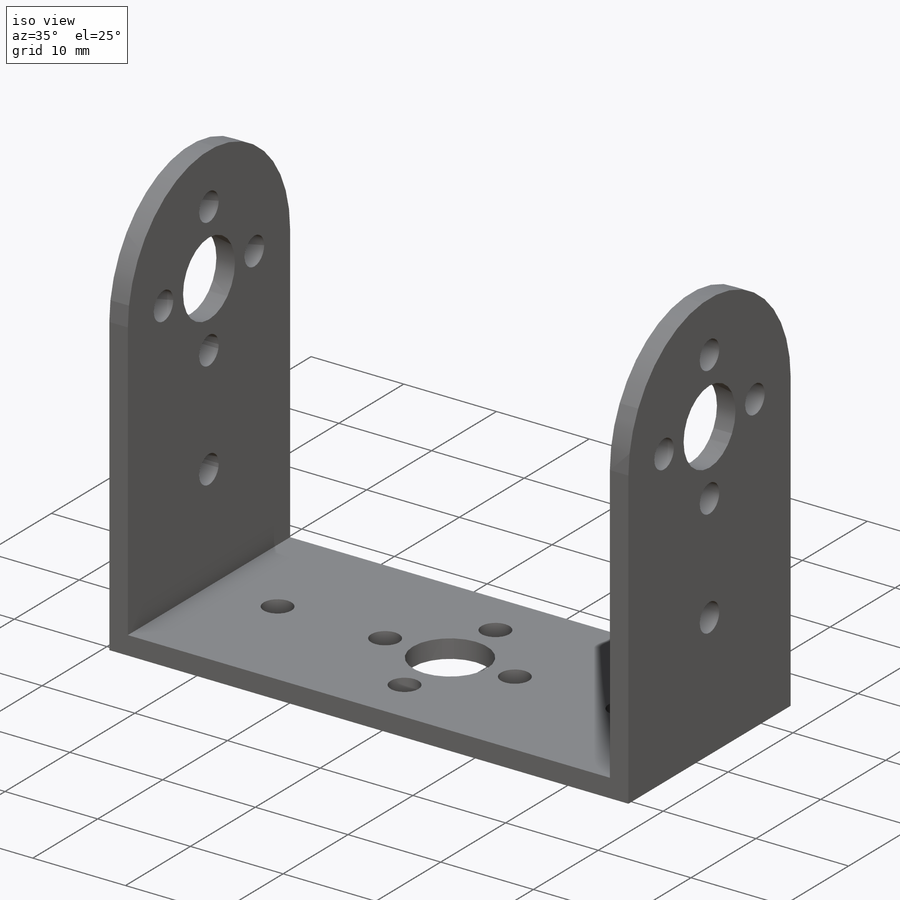
[diagram: iso view]
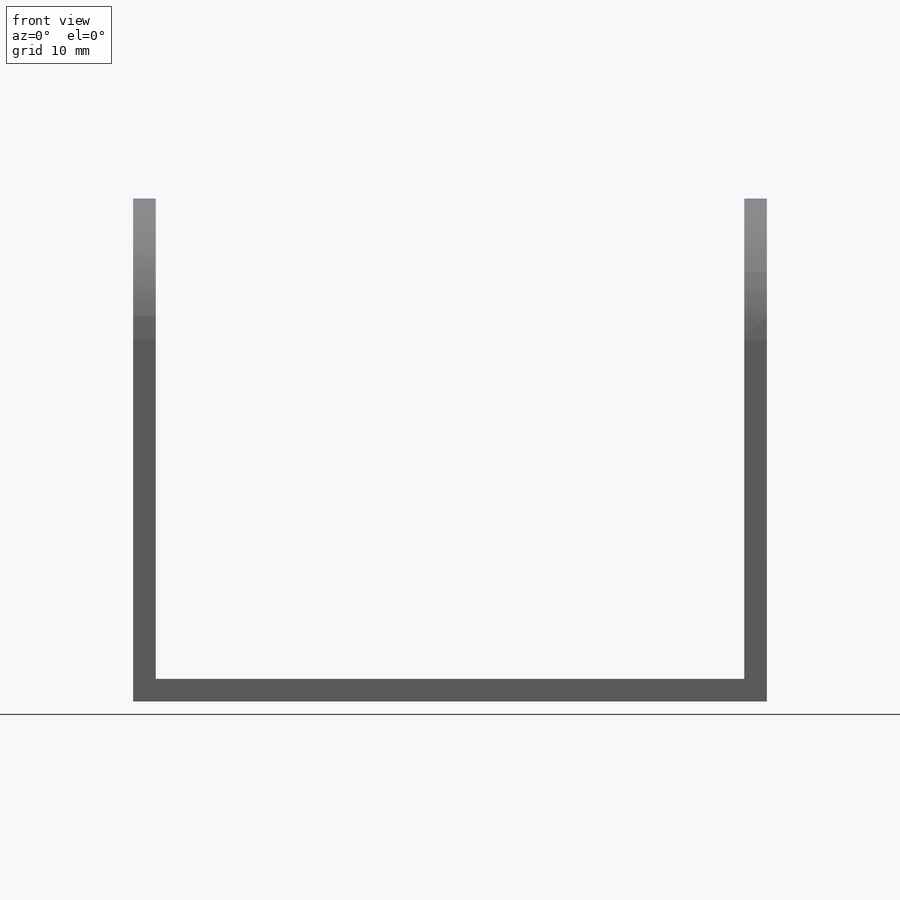
[diagram: front view]
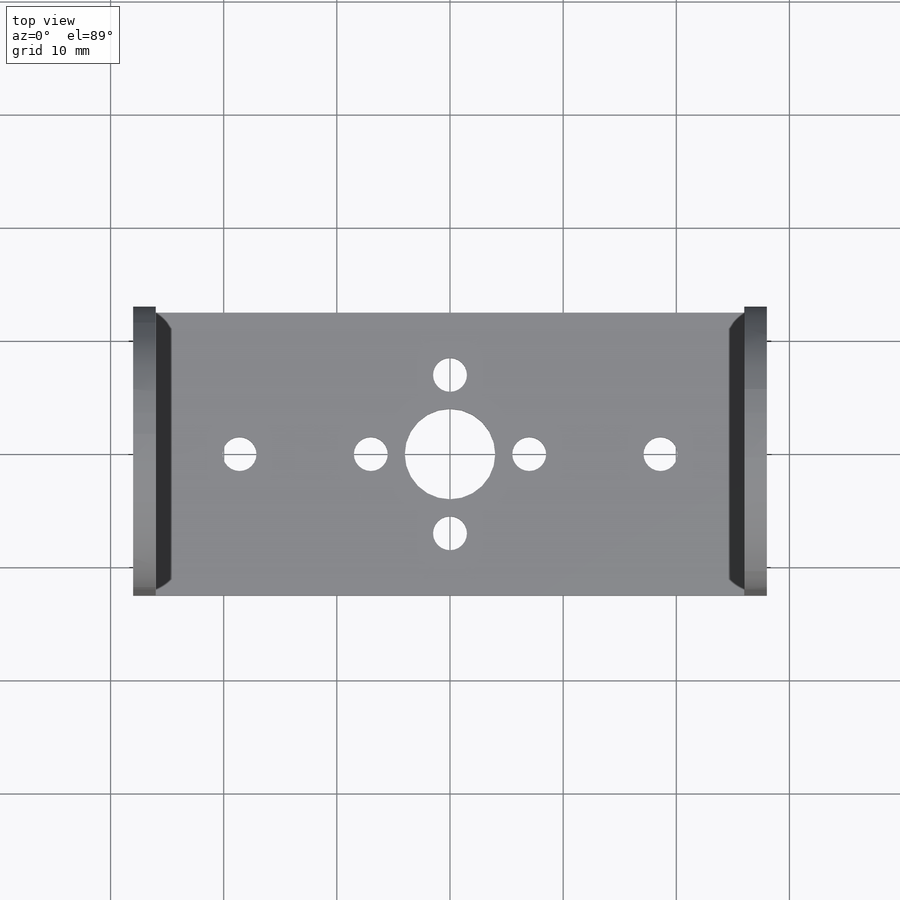
[diagram: top view]
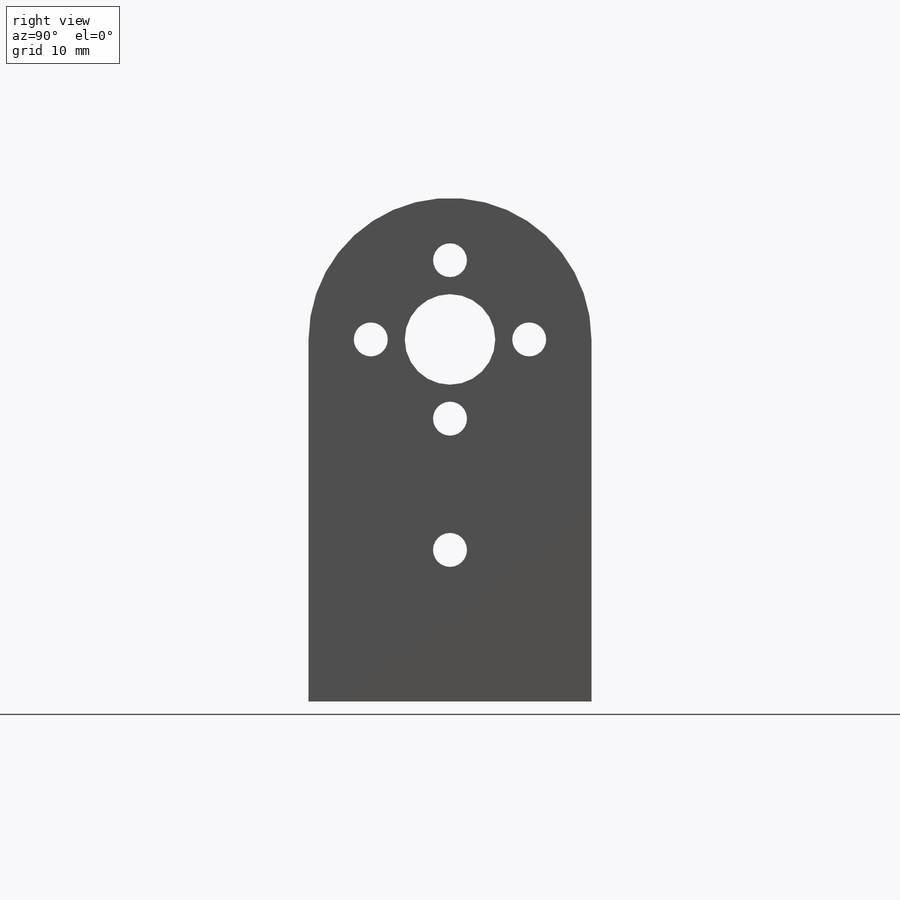
[diagram: right view]
SOLIDWORKS PART (.sldprt)
format: sldprt  version: not decoded by parser v0  size: 239,104 bytes
history: native  units: mm
features: sketch x4, extrude x3, material x1, cut_extrude x1 (+13 scaffold rows collapsed)
feature tree (22):
  scaffold x13  (default folders/planes/origin — collapsed)
  material  "5052-H32"
  sketch  "Sketch1"  dims[D1=52.0mm D2=25.0mm]
  extrude  "Boss-Extrude1"  Depth=2mm
  sketch  "Sketch3"  dims[c1.D1=14.0mm c1.D2=8.0mm c1.D3=3.0mm c1.D4=3.0mm c1.D5=3.0mm c1.D6=3.0mm c2.D1=3.0mm c2.D7=3.0mm c2.D8=18.6mm c2.D9=18.6mm]
  cut_extrude  "Cut-Extrude1"  [1 undecoded]
  sketch  "Sketch4"  dims[D3=3.0mm D4=3.0mm D5=3.0mm D6=3.0mm D7=14.0mm D8=8.0mm D10=3.0mm D1=25.0mm D2=32.0mm D9=18.6mm]
  extrude  "Boss-Extrude3"  Depth=2mm
  sketch  "Sketch5"  dims[D1=32.0mm D2=25.0mm]
  extrude  "Boss-Extrude4"  Depth=2mm
decode coverage: 7 of 8 modeling features carry decoded parameters
note: 1 parameter value undecoded
note: suppression state not decoded; provenance and decode notes live in map.json
